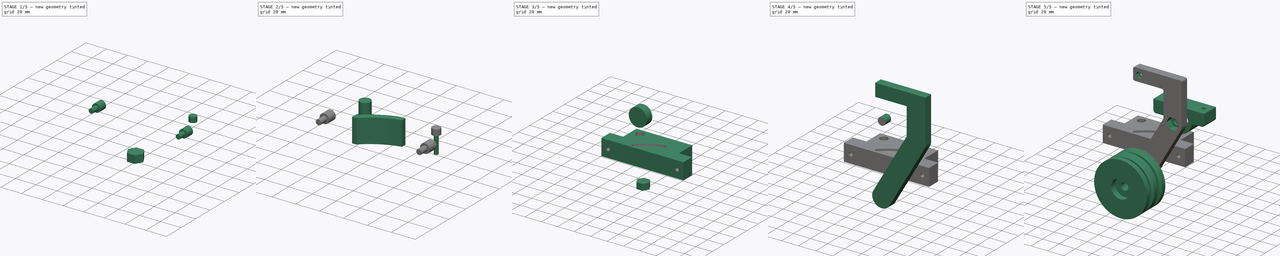
[diagram: build sequence overview — one tinted view per stage of 5, left to right]
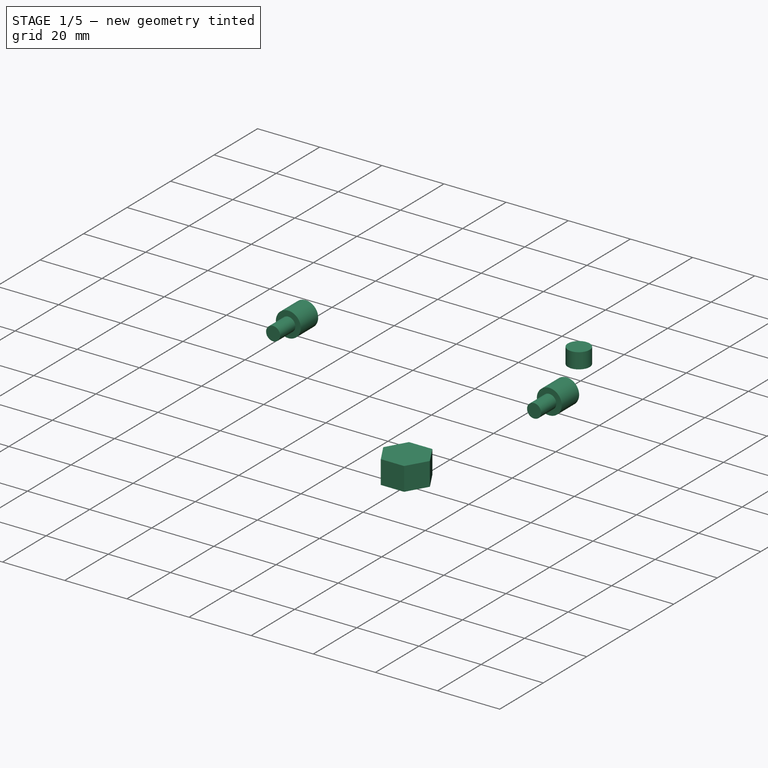
[diagram: stage 1 of 5 — iso view after this stage's code; geometry added in this stage tinted green]
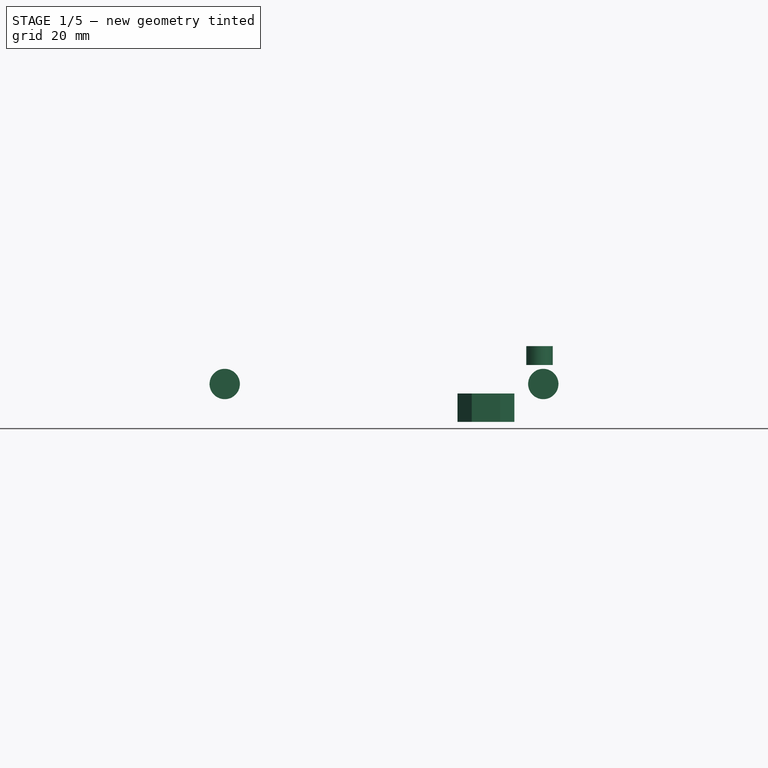
[diagram: stage 1 of 5 — front view after this stage's code; geometry added in this stage tinted green]
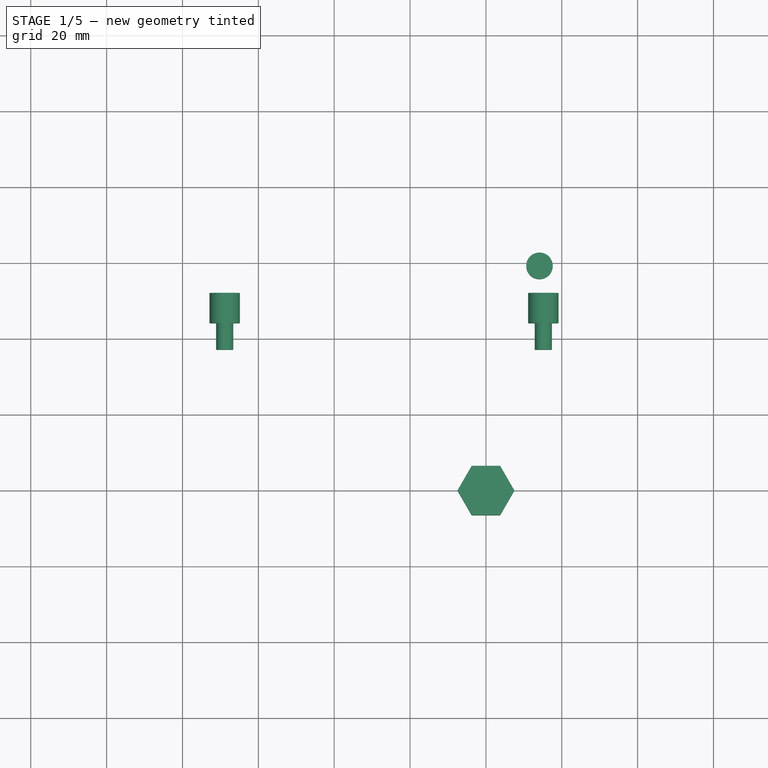
[diagram: stage 1 of 5 — top view after this stage's code; geometry added in this stage tinted green]
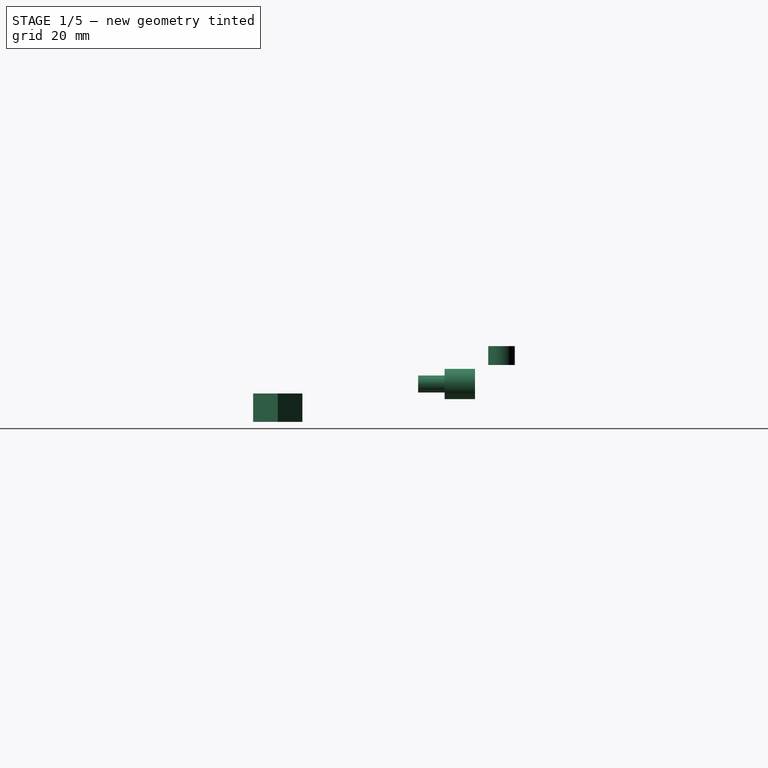
[diagram: stage 1 of 5 — right view after this stage's code; geometry added in this stage tinted green]
FCSTD DOCUMENT  (FreeCAD 1.0R1.0rc2)
Label: SuspensioNPart2_NoParametric
License: All rights reserved
LicenseURL: http://en.wikipedia.org/wiki/All_rights_reserved
objects: Part::Cylinder×14, Part::MultiFuse×8, Part::Box×6, Sketcher::SketchObject×4, PartDesign::Pad×4, PartDesign::Body×4, Spreadsheet::Sheet×4, Part::Cut×3, Part::Fillet×3, Part::Feature×2, Part::Compound×1, Part::MultiCommon×1
note: 62 computed .brp shape members not serialized (recipe doc carries the construction recipe); baked Part::Feature solids carry a one-line shape summary decoded from their .brp

FEATURE [Sketcher::SketchObject] Sketch004
  ArcFitTolerance = 1e-06
  AttachmentSupport = -> [XY_Plane004]
  FullyConstrained = true
  MakeInternals = false
  MapMode = 5
  expr: Constraints[17] = 15 / 2
  sketch-geometry (7):
    g0: LineSegment StartX=7.5 StartY=0 StartZ=0 EndX=3.75 EndY=6.49519 EndZ=0
    g1: LineSegment StartX=3.75 StartY=6.49519 StartZ=0 EndX=-3.75 EndY=6.49519 EndZ=0
    g2: LineSegment StartX=-3.75 StartY=6.49519 StartZ=0 EndX=-7.5 EndY=0 EndZ=0
    g3: LineSegment StartX=-7.5 StartY=0 StartZ=0 EndX=-3.75 EndY=-6.49519 EndZ=0
    g4: LineSegment StartX=-3.75 StartY=-6.49519 StartZ=0 EndX=3.75 EndY=-6.49519 EndZ=0
    g5: LineSegment StartX=3.75 StartY=-6.49519 StartZ=0 EndX=7.5 EndY=0 EndZ=0
    g6: Circle [constr] CenterX=0 CenterY=0 CenterZ=0 NormalX=0 NormalY=0 NormalZ=1 AngleXU=0 Radius=7.5
  constraints (16):
    c: Coincident(g0,g1)
    c: Coincident(g1,g2)
    c: Coincident(g2,g3)
    c: Coincident(g3,g4)
    c: Coincident(g4,g5)
    c: Coincident(g5,g0)
    c: Equal(g0, g1-g5) x5
    c: PointOnObject(g0,g6)
    c: PointOnObject(g1,g6)
    c: PointOnObject(g2,g6)
    c: PointOnObject(g3,g6)
    c: PointOnObject(g4,g6)
    c: PointOnObject(g5,g6)
    c: Radius(g6) = 7.5
    c: Coincident(g6,g-1)
    c: PointOnObject(g5,g-1)
FEATURE [PartDesign::Pad] Pad004
  Direction = (0,0,1)
  Length = 7.5
  Length2 = 10
  Profile = -> Sketch004
  ReferenceAxis = -> Sketch004 [N_Axis]
  Suppressed = false
  Type = 0
FEATURE [PartDesign::Body] Body004  label="M8Press002"
  AllowCompound = false
  Group = -> [Sketch004,Pad004]
  Origin = -> Origin004
  Placement = pos=(-50.8651,67,0) rot=(1,0,0;0rad)
  Tip = -> Pad004
  expr: .Placement.Base.x = -sqrt(<<SuspensionLimiter>>.rotation_radius * <<SuspensionLimiter>>.rotation_radius - <<SuspensionLimiter>>.rotation_offset * <<SuspensionLimiter>>.rotation_offset) - 10
  expr: .Placement.Base.y = <<SuspensionLimiter>>.rotation_offset + <<SuspensionLimiter>>.rotation_height_limit + 10
FEATURE [Spreadsheet::Sheet] Spreadsheet003  label="BearingFlangeParameters001"
  cells = A2='Bearing configuration; A3='Bearing OD; B3(bearing_od)=22; A4='Bearing thickness; B4(bearing_h)=7; A5='Tolerance; B5(tolerance)=0.2; A6='Bearing ID; B6(bearing_id)=15; A7='Base Profile configuration; A8='Width; B8(profile_width)=20; A9='Screw through dia; B9(screw_hole_dia)=4.5; A10='Bearing offset; B10(bearing_offset)=15; C10='This is the offset of the axis center from the profile base; A11='Min wall width; B11(min_wall_width)=4; C11='Wall width except for bearing offset towards profile; A12='Screw head dia; B12(screw_head_dia)=8; C12='M4 has 7mm diameter, leaving space; A13='Screw head height; B13(screw_head_height)=8; C13='M4 has 4mm, leaving space (and with +3mm can use 12mm screws)
FEATURE [Part::Cylinder] Cylinder020
  Angle = 360
  AttacherType = Attacher::AttachEngine3D
  FirstAngle = 0
  Height = 5
  Placement = pos=(14.1258,59,15) rot=(0,0,1;0rad)
  Radius = 3.5
  SecondAngle = 0
  expr: .Placement.Base.x = -(sqrt(<<SuspensionLimiter>>.rotation_radius * <<SuspensionLimiter>>.rotation_radius - <<SuspensionLimiter>>.rotation_offset * <<SuspensionLimiter>>.rotation_offset) - sqrt(57 * 57 - <<SuspensionLimiter>>.rotation_height_limit * <<SuspensionLimiter>>.rotation_height_limit))
  expr: .Placement.Base.y = <<SuspensionLimiter>>.rotation_offset - <<SuspensionLimiter>>.limiter_diameter / 2 + <<SuspensionLimiter>>.rotation_height_limit + <<SuspensionLimiter>>.limiter_diameter
  expr: .Placement.Base.z = <<SuspensionLimiter>>.profile_width - 5
FEATURE [Part::Cylinder] Cylinder021
  Angle = 360
  AttacherType = Attacher::AttachEngine3D
  FirstAngle = 0
  Height = 8
  Radius = 4
  SecondAngle = 0
FEATURE [Part::Cylinder] Cylinder022
  Angle = 360
  AttacherType = Attacher::AttachEngine3D
  FirstAngle = 0
  Height = 15
  Radius = 2.25
  SecondAngle = 0
FEATURE [Part::MultiFuse] Fusion008
  Placement = pos=(-68.8651,52,10) rot=(1,0,0;1.5708rad)
  Shapes = -> [Cylinder022,Cylinder021]
  expr: .Placement.Base.x = -sqrt(<<SuspensionLimiter>>.rotation_radius * <<SuspensionLimiter>>.rotation_radius - <<SuspensionLimiter>>.rotation_offset * <<SuspensionLimiter>>.rotation_offset) - 10 - 10 - 16 + 8
  expr: .Placement.Base.y = <<SuspensionLimiter>>.rotation_offset - 5 + 15
  expr: .Placement.Base.z = <<SuspensionLimiter>>.profile_width / 2
FEATURE [Part::Cylinder] Cylinder023
  Angle = 360
  AttacherType = Attacher::AttachEngine3D
  FirstAngle = 0
  Height = 8
  Radius = 4
  SecondAngle = 0
FEATURE [Part::Cylinder] Cylinder024
  Angle = 360
  AttacherType = Attacher::AttachEngine3D
  FirstAngle = 0
  Height = 15
  Radius = 2.25
  SecondAngle = 0
FEATURE [Part::MultiFuse] Fusion009
  Placement = pos=(15.1258,52,10) rot=(1,0,0;1.5708rad)
  Shapes = -> [Cylinder024,Cylinder023]
  expr: .Placement.Base.x = -sqrt(<<SuspensionLimiter>>.rotation_radius * <<SuspensionLimiter>>.rotation_radius - <<SuspensionLimiter>>.rotation_offset * <<SuspensionLimiter>>.rotation_offset) - 10 - 10 - 16 + 8 + sqrt(<<SuspensionLimiter>>.rotation_radius * <<SuspensionLimiter>>.rotation_radius - <<SuspensionLimiter>>.rotation_offset * <<SuspensionLimiter>>.rotation_offset) + 10 + max(-(sqrt(<<SuspensionLimiter>>.rotation_radius * <<SuspensionLimiter>>.rotation_radius - <<SuspensionLimiter>>.rotation_offset * <<SuspensionLimiter>>.rotation_offset) - sqrt(57 * 57 - <<SuspensionLimiter>>.rotation_height_limit * <<SuspensionLimiter>>.rotation_height_limit)); 0) + 5 + 10 + 32 - 16 - 20 + 8
  expr: .Placement.Base.y = <<SuspensionLimiter>>.rotation_offset - 5 + 15
  expr: .Placement.Base.z = <<SuspensionLimiter>>.profile_width / 2
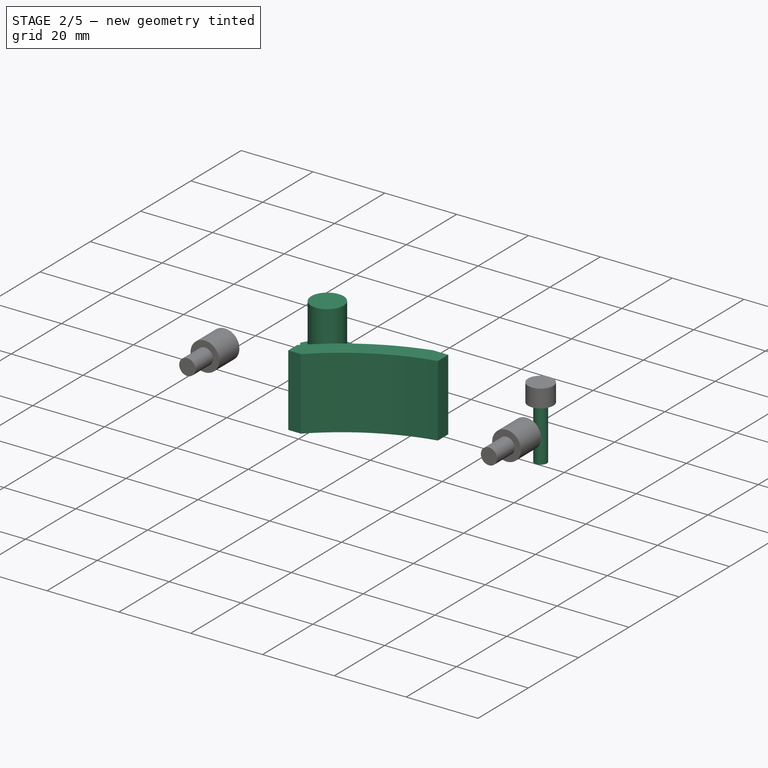
[diagram: stage 2 of 5 — iso view after this stage's code; geometry added in this stage tinted green]
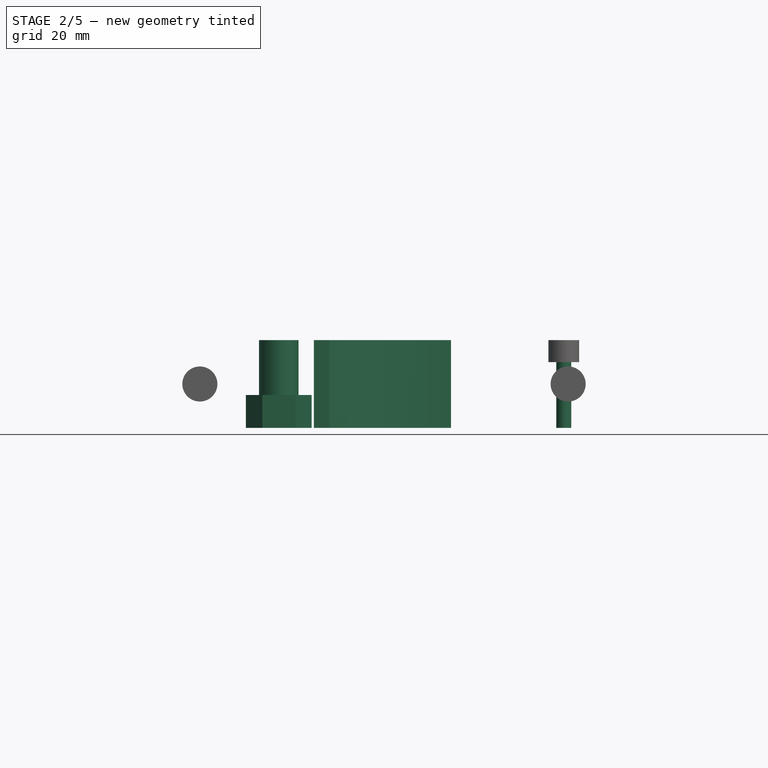
[diagram: stage 2 of 5 — front view after this stage's code; geometry added in this stage tinted green]
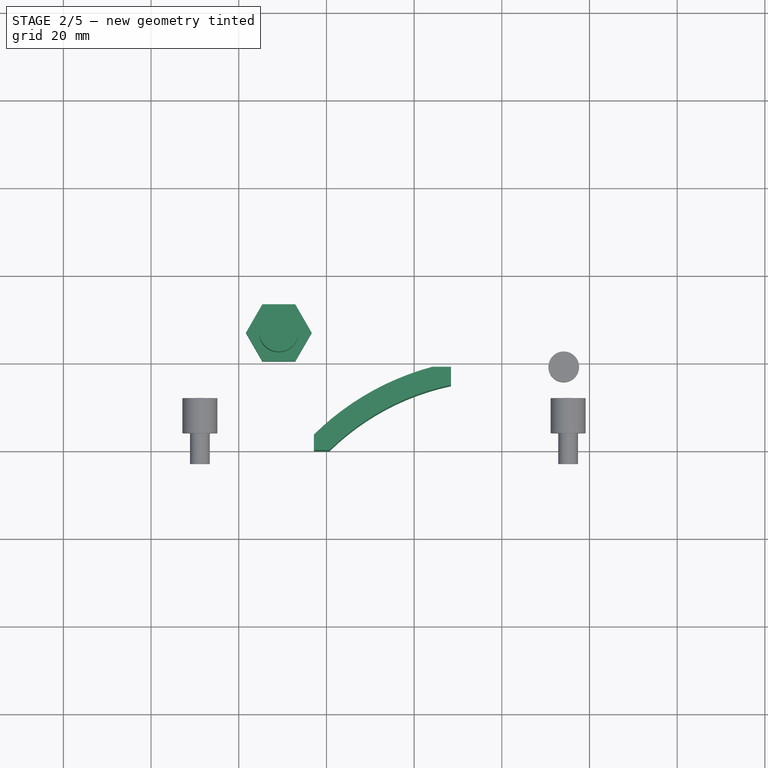
[diagram: stage 2 of 5 — top view after this stage's code; geometry added in this stage tinted green]
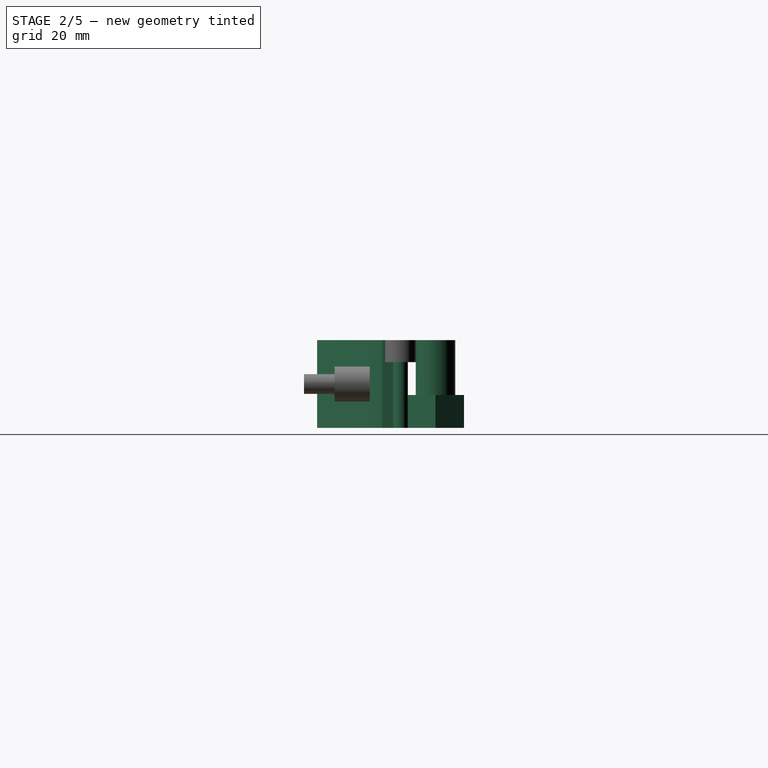
[diagram: stage 2 of 5 — right view after this stage's code; geometry added in this stage tinted green]
FEATURE [Part::Cylinder] Cylinder
  Angle = 360
  AttacherType = Attacher::AttachEngine3D
  FirstAngle = 0
  Height = 20
  Radius = 56.1
  SecondAngle = 0
  expr: Height = <<SuspensionLimiter>>.profile_width
  expr: Radius = <<SuspensionLimiter>>.rotation_radius - <<SuspensionLimiter>>.limiter_diameter / 2 - 0.5
FEATURE [Part::Cylinder] Cylinder017
  Angle = 360
  AttacherType = Attacher::AttachEngine3D
  FirstAngle = 0
  Height = 20
  Radius = 61.1
  SecondAngle = 0
  expr: Height = <<SuspensionLimiter>>.profile_width
  expr: Radius = <<SuspensionLimiter>>.rotation_radius + <<SuspensionLimiter>>.limiter_diameter / 2 + 0.5
FEATURE [Part::Cut] Cut
  Base = -> Cylinder017
  Tool = -> Cylinder
FEATURE [Part::Box] Box003  label="Cube003"
  AttacherType = Attacher::AttachEngine3D
  Height = 20
  Length = 31.2651
  Placement = pos=(-42.8651,40,0) rot=(0,0,1;0rad)
  Width = 19
  expr: .Placement.Base.x = -sqrt(<<SuspensionLimiter>>.rotation_radius * <<SuspensionLimiter>>.rotation_radius - <<SuspensionLimiter>>.rotation_offset * <<SuspensionLimiter>>.rotation_offset) - <<SuspensionLimiter>>.limiter_diameter / 2
  expr: .Placement.Base.y = <<SuspensionLimiter>>.rotation_offset - <<SuspensionLimiter>>.limiter_diameter / 2
  expr: Height = <<SuspensionLimiter>>.profile_width
  expr: Length = sqrt(<<SuspensionLimiter>>.rotation_radius * <<SuspensionLimiter>>.rotation_radius - <<SuspensionLimiter>>.rotation_offset * <<SuspensionLimiter>>.rotation_offset) - sqrt(<<SuspensionLimiter>>.rotation_radius * <<SuspensionLimiter>>.rotation_radius - (<<SuspensionLimiter>>.rotation_offset + <<SuspensionLimiter>>.rotation_height_limit) * (<<SuspensionLimiter>>.rotation_offset + <<SuspensionLimiter>>.rotation_height_limit)) + 4
  expr: Width = <<SuspensionLimiter>>.rotation_height_limit + <<SuspensionLimiter>>.limiter_diameter
FEATURE [Spreadsheet::Sheet] Spreadsheet  label="SuspensionLimiter"
  cells = A2='Rotating Radius; B2(rotation_radius)=58.6; A3='Rotation height; B3(rotation_height_limit)=15; A4='Rotation offset; B4(rotation_offset)=42; C4='Vertical; A5='Limiter Diameter; B5(limiter_diameter)=4; A6='Profile width; B6(profile_width)=20
FEATURE [Part::MultiCommon] Common
  Shapes = -> [Cut,Box003]
FEATURE [Part::Cylinder] Cylinder018
  Angle = 360
  AttacherType = Attacher::AttachEngine3D
  FirstAngle = 0
  Height = 20
  Placement = pos=(-50.8651,67,0) rot=(0,0,1;0rad)
  Radius = 4.5
  SecondAngle = 0
  expr: .Placement.Base.x = -sqrt(<<SuspensionLimiter>>.rotation_radius * <<SuspensionLimiter>>.rotation_radius - <<SuspensionLimiter>>.rotation_offset * <<SuspensionLimiter>>.rotation_offset) - 10
  expr: .Placement.Base.y = <<SuspensionLimiter>>.rotation_offset + <<SuspensionLimiter>>.rotation_height_limit + 10
  expr: Height = <<SuspensionLimiter>>.profile_width
FEATURE [Part::Cylinder] Cylinder019
  Angle = 360
  AttacherType = Attacher::AttachEngine3D
  FirstAngle = 0
  Height = 20
  Placement = pos=(14.1258,59,0) rot=(0,0,1;0rad)
  Radius = 1.7
  SecondAngle = 0
  expr: .Placement.Base.x = -(sqrt(<<SuspensionLimiter>>.rotation_radius * <<SuspensionLimiter>>.rotation_radius - <<SuspensionLimiter>>.rotation_offset * <<SuspensionLimiter>>.rotation_offset) - sqrt(57 * 57 - <<SuspensionLimiter>>.rotation_height_limit * <<SuspensionLimiter>>.rotation_height_limit))
  expr: .Placement.Base.y = <<SuspensionLimiter>>.rotation_offset - <<SuspensionLimiter>>.limiter_diameter / 2 + <<SuspensionLimiter>>.rotation_height_limit + <<SuspensionLimiter>>.limiter_diameter
  expr: Height = <<SuspensionLimiter>>.profile_width
FEATURE [Part::MultiFuse] Fusion011
  Shapes = -> [Cylinder018,Cylinder019,Body004,Common,Cylinder020,Fusion008,Fusion009]
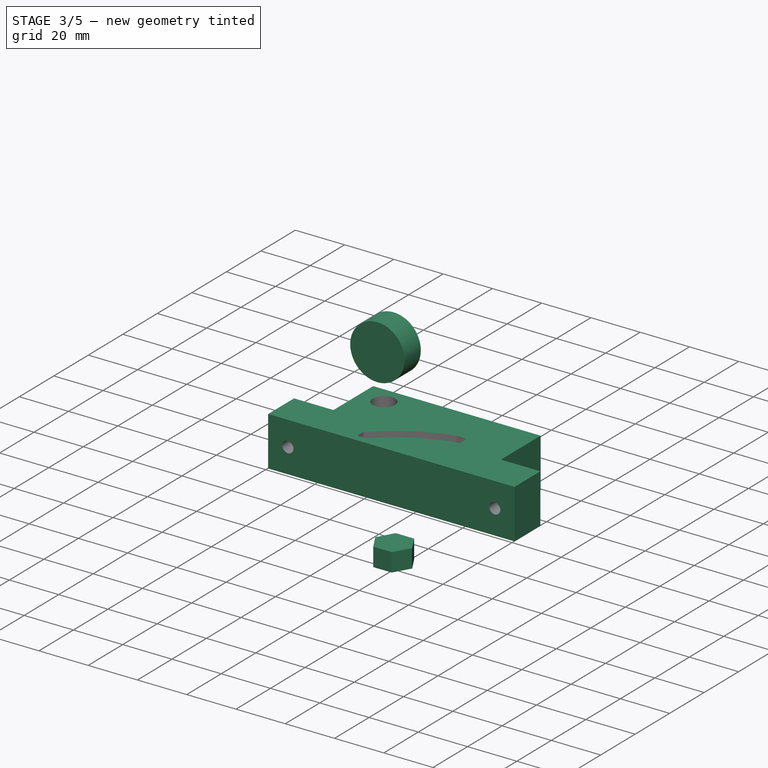
[diagram: stage 3 of 5 — iso view after this stage's code; geometry added in this stage tinted green]
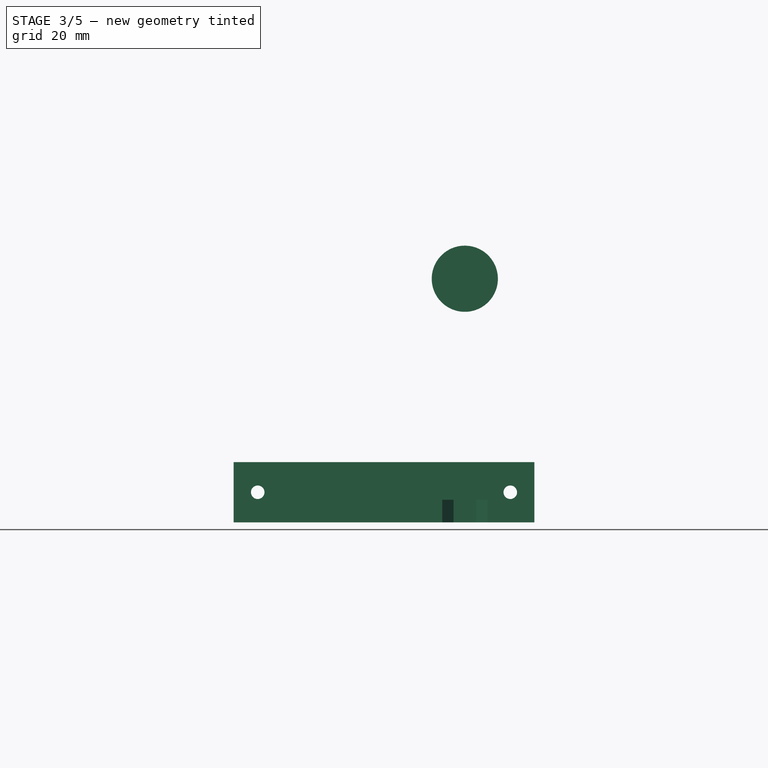
[diagram: stage 3 of 5 — front view after this stage's code; geometry added in this stage tinted green]
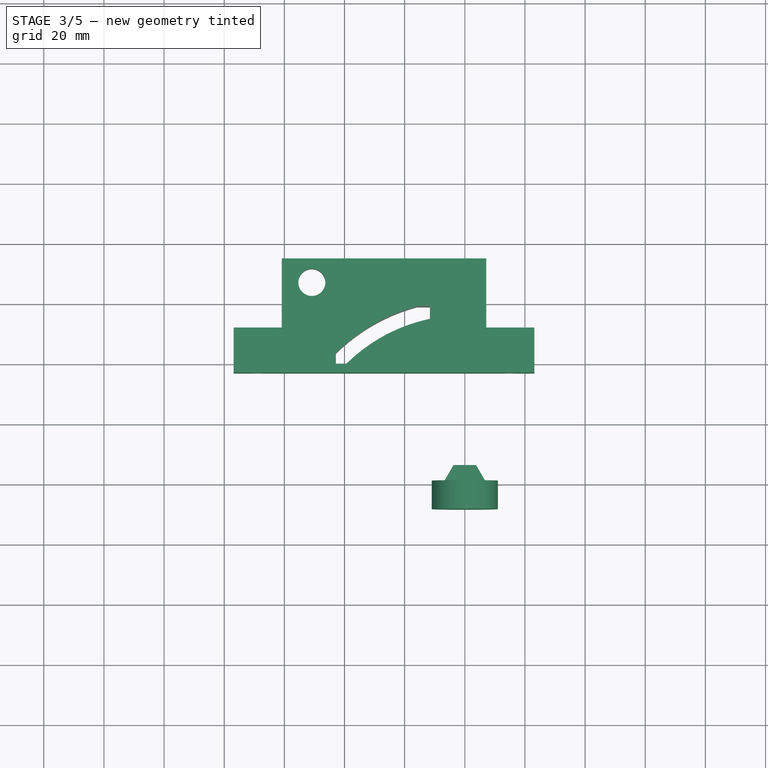
[diagram: stage 3 of 5 — top view after this stage's code; geometry added in this stage tinted green]
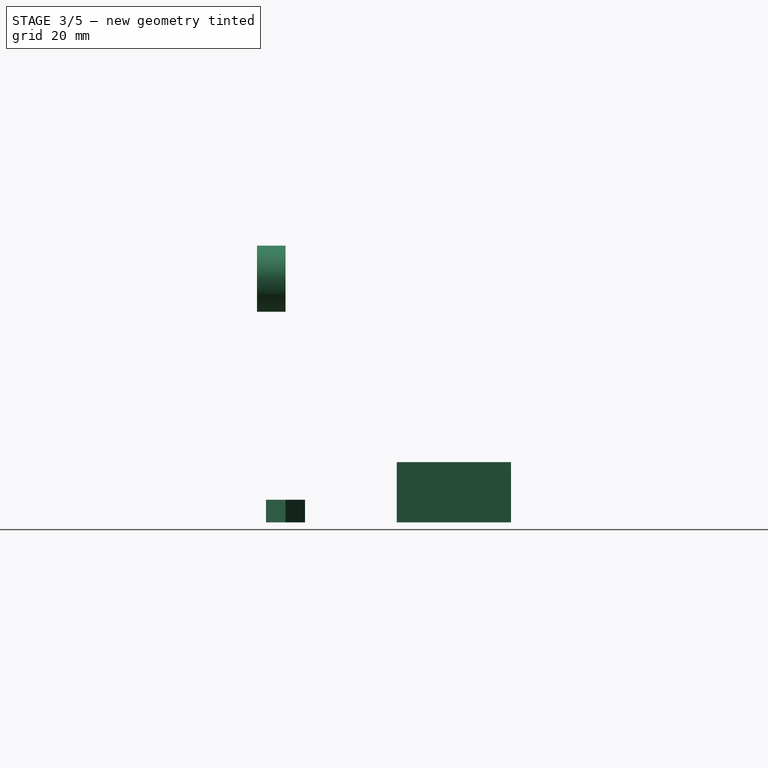
[diagram: stage 3 of 5 — right view after this stage's code; geometry added in this stage tinted green]
FEATURE [Part::Cylinder] Cylinder013
  Angle = 360
  AttacherType = Attacher::AttachEngine3D
  FirstAngle = 0
  Height = 9.5
  Placement = pos=(0,0,81) rot=(1,0,0;1.5708rad)
  Radius = 11
  SecondAngle = 0
  expr: .Placement.Base.z = <<SuspensionBracket1>>.vertical_spacing + 11
  expr: Height = <<SuspensionBracket1>>.thick_eff
FEATURE [Sketcher::SketchObject] Sketch
  ArcFitTolerance = 1e-06
  AttachmentSupport = -> [XY_Plane]
  FullyConstrained = true
  MakeInternals = false
  MapMode = 5
  expr: Constraints[17] = 15 / 2
  sketch-geometry (7):
    g0: LineSegment StartX=7.5 StartY=0 StartZ=0 EndX=3.75 EndY=6.49519 EndZ=0
    g1: LineSegment StartX=3.75 StartY=6.49519 StartZ=0 EndX=-3.75 EndY=6.49519 EndZ=0
    g2: LineSegment StartX=-3.75 StartY=6.49519 StartZ=0 EndX=-7.5 EndY=0 EndZ=0
    g3: LineSegment StartX=-7.5 StartY=0 StartZ=0 EndX=-3.75 EndY=-6.49519 EndZ=0
    g4: LineSegment StartX=-3.75 StartY=-6.49519 StartZ=0 EndX=3.75 EndY=-6.49519 EndZ=0
    g5: LineSegment StartX=3.75 StartY=-6.49519 StartZ=0 EndX=7.5 EndY=0 EndZ=0
    g6: Circle [constr] CenterX=0 CenterY=0 CenterZ=0 NormalX=0 NormalY=0 NormalZ=1 AngleXU=0 Radius=7.5
  constraints (16):
    c: Coincident(g0,g1)
    c: Coincident(g1,g2)
    c: Coincident(g2,g3)
    c: Coincident(g3,g4)
    c: Coincident(g4,g5)
    c: Coincident(g5,g0)
    c: Equal(g0, g1-g5) x5
    c: PointOnObject(g0,g6)
    c: PointOnObject(g1,g6)
    c: PointOnObject(g2,g6)
    c: PointOnObject(g3,g6)
    c: PointOnObject(g4,g6)
    c: PointOnObject(g5,g6)
    c: Radius(g6) = 7.5
    c: Coincident(g6,g-1)
    c: PointOnObject(g5,g-1)
FEATURE [PartDesign::Pad] Pad
  Direction = (0,0,1)
  Length = 7.5
  Length2 = 10
  Profile = -> Sketch
  ReferenceAxis = -> Sketch [N_Axis]
  Suppressed = false
  Type = 0
FEATURE [PartDesign::Body] Body  label="M8Press"
  AllowCompound = false
  Group = -> [Sketch,Pad]
  Origin = -> Origin
  Placement = pos=(0,0,0) rot=(1,0,0;1.5708rad)
  Tip = -> Pad
FEATURE [Sketcher::SketchObject] Sketch001
  ArcFitTolerance = 1e-06
  AttachmentSupport = -> [XY_Plane001]
  FullyConstrained = true
  MakeInternals = false
  MapMode = 5
  expr: Constraints[17] = 8 / 2
  sketch-geometry (7):
    g0: LineSegment StartX=4 StartY=0 StartZ=0 EndX=2 EndY=3.4641 EndZ=0
    g1: LineSegment StartX=2 StartY=3.4641 StartZ=0 EndX=-2 EndY=3.4641 EndZ=0
    g2: LineSegment StartX=-2 StartY=3.4641 StartZ=0 EndX=-4 EndY=0 EndZ=0
    g3: LineSegment StartX=-4 StartY=0 StartZ=0 EndX=-2 EndY=-3.4641 EndZ=0
    g4: LineSegment StartX=-2 StartY=-3.4641 StartZ=0 EndX=2 EndY=-3.4641 EndZ=0
    g5: LineSegment StartX=2 StartY=-3.4641 StartZ=0 EndX=4 EndY=0 EndZ=0
    g6: Circle [constr] CenterX=0 CenterY=0 CenterZ=0 NormalX=0 NormalY=0 NormalZ=1 AngleXU=0 Radius=4
  constraints (16):
    c: Coincident(g0,g1)
    c: Coincident(g1,g2)
    c: Coincident(g2,g3)
    c: Coincident(g3,g4)
    c: Coincident(g4,g5)
    c: Coincident(g5,g0)
    c: Equal(g0, g1-g5) x5
    c: PointOnObject(g0,g6)
    c: PointOnObject(g1,g6)
    c: PointOnObject(g2,g6)
    c: PointOnObject(g3,g6)
    c: PointOnObject(g4,g6)
    c: PointOnObject(g5,g6)
    c: Radius(g6) = 4
    c: Coincident(g6,g-1)
    c: PointOnObject(g5,g-1)
FEATURE [PartDesign::Pad] Pad001
  Direction = (0,0,1)
  Length = 4
  Length2 = 10
  Profile = -> Sketch001
  ReferenceAxis = -> Sketch001 [N_Axis]
  Suppressed = false
  Type = 0
FEATURE [PartDesign::Body] Body001  label="M4Press"
  AllowCompound = false
  Group = -> [Sketch001,Pad001]
  Origin = -> Origin001
  Placement = pos=(0,-5.5,112.5) rot=(1,0,0;1.5708rad)
  Tip = -> Pad001
  expr: .Placement.Base.y = -(<<SuspensionBracket1>>.thick_eff - 4)
  expr: .Placement.Base.z = <<SuspensionBracket1>>.vertical_spacing + <<BearingFlangeParameters>>.bearing_offset + <<BearingFlangeParameters>>.profile_width + 7.5
FEATURE [Sketcher::SketchObject] Sketch002
  ArcFitTolerance = 1e-06
  AttachmentSupport = -> [XY_Plane002]
  FullyConstrained = true
  MakeInternals = false
  MapMode = 5
  expr: Constraints[17] = 15 / 2
  sketch-geometry (7):
    g0: LineSegment StartX=7.5 StartY=0 StartZ=0 EndX=3.75 EndY=6.49519 EndZ=0
    g1: LineSegment StartX=3.75 StartY=6.49519 StartZ=0 EndX=-3.75 EndY=6.49519 EndZ=0
    g2: LineSegment StartX=-3.75 StartY=6.49519 StartZ=0 EndX=-7.5 EndY=0 EndZ=0
    g3: LineSegment StartX=-7.5 StartY=0 StartZ=0 EndX=-3.75 EndY=-6.49519 EndZ=0
    g4: LineSegment StartX=-3.75 StartY=-6.49519 StartZ=0 EndX=3.75 EndY=-6.49519 EndZ=0
    g5: LineSegment StartX=3.75 StartY=-6.49519 StartZ=0 EndX=7.5 EndY=0 EndZ=0
    g6: Circle [constr] CenterX=0 CenterY=0 CenterZ=0 NormalX=0 NormalY=0 NormalZ=1 AngleXU=0 Radius=7.5
  constraints (16):
    c: Coincident(g0,g1)
    c: Coincident(g1,g2)
    c: Coincident(g2,g3)
    c: Coincident(g3,g4)
    c: Coincident(g4,g5)
    c: Coincident(g5,g0)
    c: Equal(g0, g1-g5) x5
    c: PointOnObject(g0,g6)
    c: PointOnObject(g1,g6)
    c: PointOnObject(g2,g6)
    c: PointOnObject(g3,g6)
    c: PointOnObject(g4,g6)
    c: PointOnObject(g5,g6)
    c: Radius(g6) = 7.5
    c: Coincident(g6,g-1)
    c: PointOnObject(g5,g-1)
FEATURE [PartDesign::Pad] Pad002
  Direction = (0,0,1)
  Length = 7.5
  Length2 = 10
  Profile = -> Sketch002
  ReferenceAxis = -> Sketch002 [N_Axis]
  Suppressed = false
  Type = 0
FEATURE [Part::Box] Box004  label="Cube004"
  AttacherType = Attacher::AttachEngine3D
  Height = 20
  Length = 67.9909
  Placement = pos=(-60.8651,37,0) rot=(0,0,1;0rad)
  Width = 38
  expr: .Placement.Base.x = -sqrt(<<SuspensionLimiter>>.rotation_radius * <<SuspensionLimiter>>.rotation_radius - <<SuspensionLimiter>>.rotation_offset * <<SuspensionLimiter>>.rotation_offset) - 10 - 10
  expr: .Placement.Base.y = <<SuspensionLimiter>>.rotation_offset - 5
  expr: Height = <<SuspensionLimiter>>.profile_width
  expr: Length = sqrt(<<SuspensionLimiter>>.rotation_radius * <<SuspensionLimiter>>.rotation_radius - <<SuspensionLimiter>>.rotation_offset * <<SuspensionLimiter>>.rotation_offset) + 10 + max(-(sqrt(<<SuspensionLimiter>>.rotation_radius * <<SuspensionLimiter>>.rotation_radius - <<SuspensionLimiter>>.rotation_offset * <<SuspensionLimiter>>.rotation_offset) - sqrt(57 * 57 - <<SuspensionLimiter>>.rotation_height_limit * <<SuspensionLimiter>>.rotation_height_limit)); 0) + 5 + 10 - 20 + 8
  expr: Width = 5 + <<SuspensionLimiter>>.rotation_height_limit + 10 + 8
FEATURE [Part::Box] Box005  label="Cube005"
  AttacherType = Attacher::AttachEngine3D
  Height = 20
  Length = 99.9909
  Placement = pos=(-76.8651,37,0) rot=(0,0,1;0rad)
  Width = 15
  expr: .Placement.Base.x = -sqrt(<<SuspensionLimiter>>.rotation_radius * <<SuspensionLimiter>>.rotation_radius - <<SuspensionLimiter>>.rotation_offset * <<SuspensionLimiter>>.rotation_offset) - 10 - 10 - 16
  expr: .Placement.Base.y = <<SuspensionLimiter>>.rotation_offset - 5
  expr: Height = <<SuspensionLimiter>>.profile_width
  expr: Length = sqrt(<<SuspensionLimiter>>.rotation_radius * <<SuspensionLimiter>>.rotation_radius - <<SuspensionLimiter>>.rotation_offset * <<SuspensionLimiter>>.rotation_offset) + 10 + max(-(sqrt(<<SuspensionLimiter>>.rotation_radius * <<SuspensionLimiter>>.rotation_radius - <<SuspensionLimiter>>.rotation_offset * <<SuspensionLimiter>>.rotation_offset) - sqrt(57 * 57 - <<SuspensionLimiter>>.rotation_height_limit * <<SuspensionLimiter>>.rotation_height_limit)); 0) + 5 + 10 + 32 - 20 + 8
  expr: Width = 15
FEATURE [Part::MultiFuse] Fusion010
  Shapes = -> [Box004,Box005]
FEATURE [Part::Cut] Cut006
  Base = -> Fusion010
  Tool = -> Fusion011
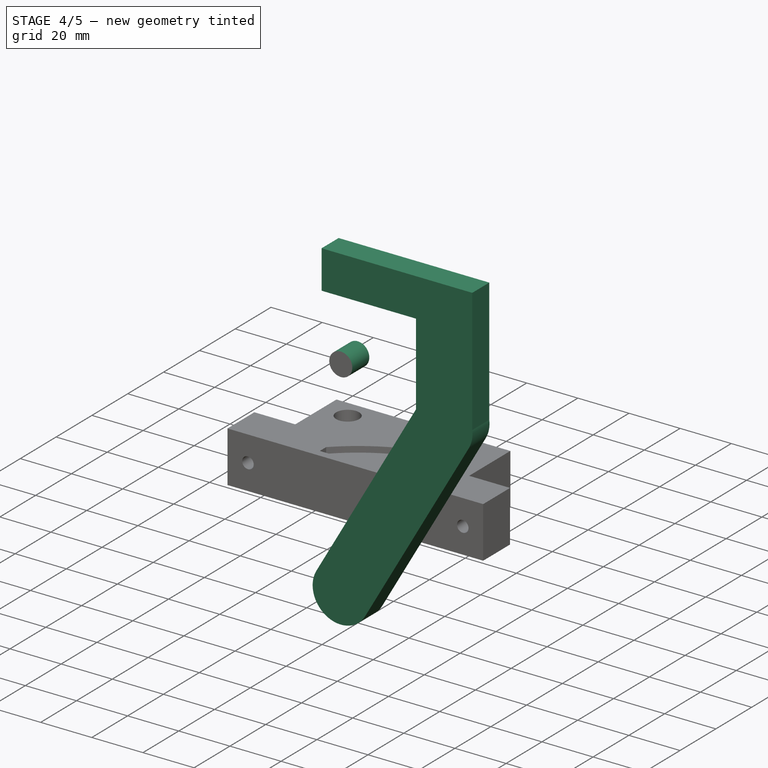
[diagram: stage 4 of 5 — iso view after this stage's code; geometry added in this stage tinted green]
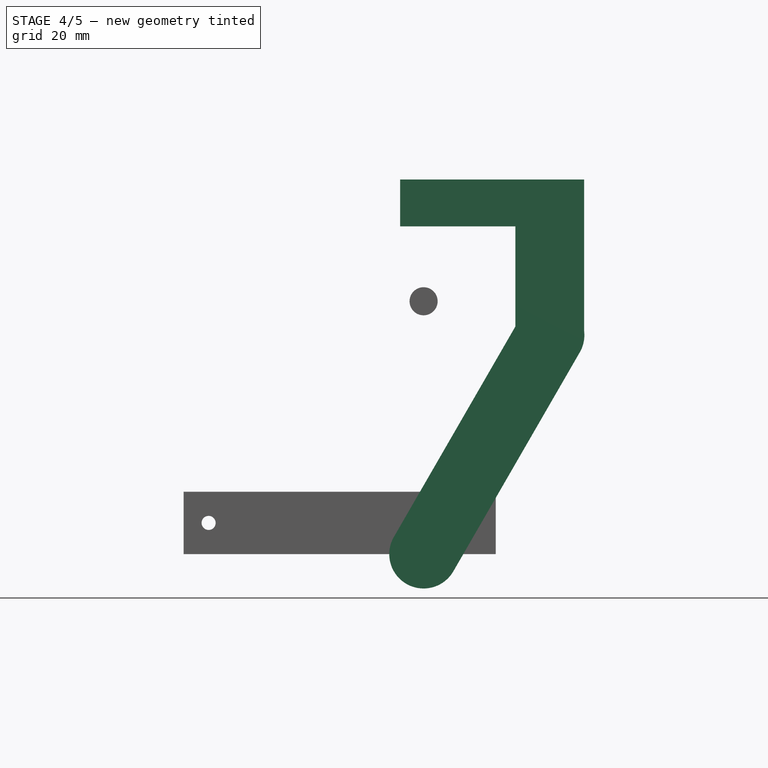
[diagram: stage 4 of 5 — front view after this stage's code; geometry added in this stage tinted green]
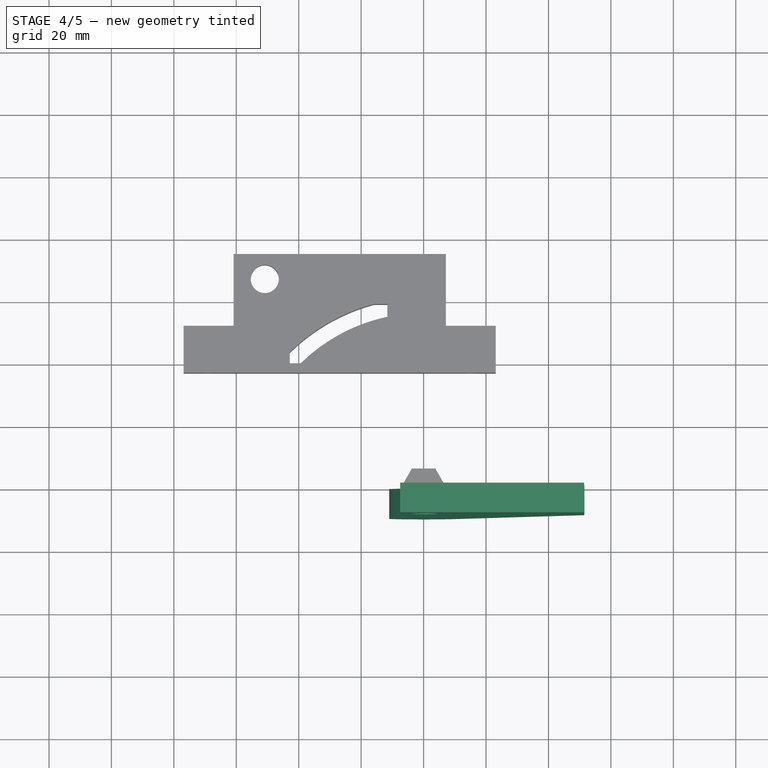
[diagram: stage 4 of 5 — top view after this stage's code; geometry added in this stage tinted green]
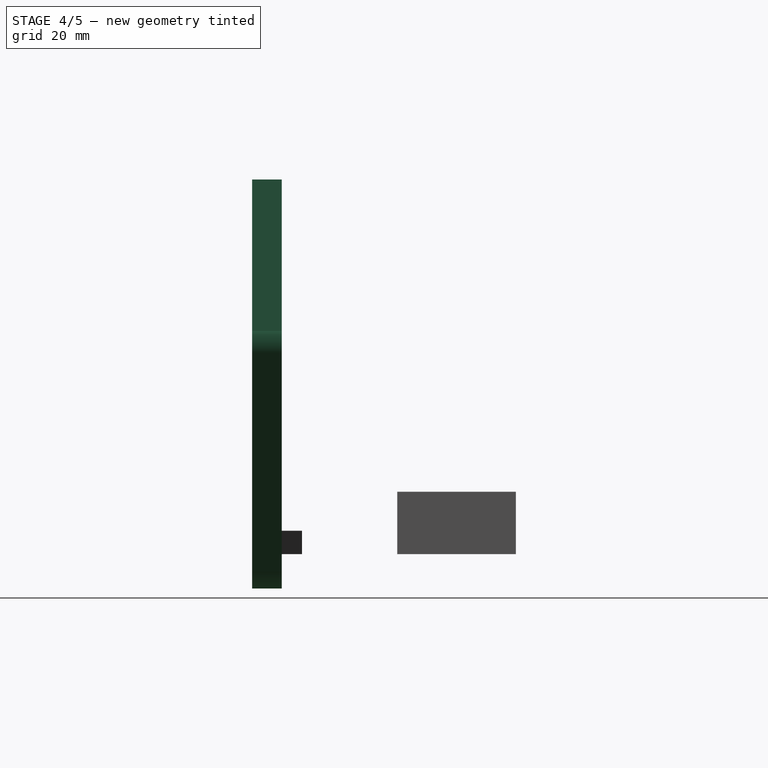
[diagram: stage 4 of 5 — right view after this stage's code; geometry added in this stage tinted green]
FEATURE [Part::Box] Box  label="Cube"
  AttacherType = Attacher::AttachEngine3D
  Height = 80.829
  Length = 22
  Placement = pos=(-11,-9.5,0) rot=(0,0,1;0rad)
  Width = 9.5
  expr: .Placement.Base.y = -<<SuspensionBracket1>>.thick_eff
  expr: Height = <<SuspensionBracket1>>.straight1
  expr: Width = <<SuspensionBracket1>>.thick_eff
FEATURE [Part::Box] Box001  label="Cube001"
  AttacherType = Attacher::AttachEngine3D
  Height = 50
  Length = 22
  Placement = pos=(29.4145,-9.5,70) rot=(0,0,1;0rad)
  Width = 9.5
  expr: .Placement.Base.x = <<SuspensionBracket1>>.horizontalspacing_wf - 11
  expr: .Placement.Base.y = -<<SuspensionBracket1>>.thick_eff
  expr: .Placement.Base.z = <<SuspensionBracket1>>.vertical_spacing
  expr: Height = <<BearingFlangeParameters>>.bearing_offset + <<BearingFlangeParameters>>.profile_width + 15
  expr: Width = <<SuspensionBracket1>>.thick_eff
FEATURE [Part::Box] Box002  label="Cube002"
  AttacherType = Attacher::AttachEngine3D
  Height = 15
  Length = 58.9145
  Placement = pos=(-7.5,-9.5,105) rot=(0,0,1;0rad)
  Width = 9.5
  expr: .Placement.Base.y = -<<SuspensionBracket1>>.thick_eff
  expr: .Placement.Base.z = <<SuspensionBracket1>>.vertical_spacing + <<BearingFlangeParameters>>.bearing_offset + <<BearingFlangeParameters>>.profile_width
  expr: Length = <<SuspensionBracket1>>.horizontalspacing_wf + 11 + 7.5
  expr: Width = <<SuspensionBracket1>>.thick_eff
FEATURE [Part::Cylinder] Cylinder012
  Angle = 360
  AttacherType = Attacher::AttachEngine3D
  FirstAngle = 0
  Height = 9.5
  Placement = pos=(0,0,0) rot=(1,0,0;1.5708rad)
  Radius = 11
  SecondAngle = 0
  expr: Height = <<SuspensionBracket1>>.thick_eff
FEATURE [Part::Cylinder] Cylinder015
  Angle = 360
  AttacherType = Attacher::AttachEngine3D
  FirstAngle = 0
  Height = 9.5
  Placement = pos=(0,0,81) rot=(1,0,0;1.5708rad)
  Radius = 4.5
  SecondAngle = 0
  expr: .Placement.Base.z = <<SuspensionBracket1>>.vertical_spacing + 11
  expr: Height = <<SuspensionBracket1>>.thick_eff
FEATURE [Part::Cylinder] Cylinder016
  Angle = 360
  AttacherType = Attacher::AttachEngine3D
  FirstAngle = 0
  Height = 9.5
  Placement = pos=(0,0,112.5) rot=(1,0,0;1.5708rad)
  Radius = 2.25
  SecondAngle = 0
  expr: .Placement.Base.z = <<SuspensionBracket1>>.vertical_spacing + <<BearingFlangeParameters>>.bearing_offset + <<BearingFlangeParameters>>.profile_width + 7.5
  expr: Height = <<SuspensionBracket1>>.thick_eff
FEATURE [Part::Feature] Fillet_solid  label="Fillet (Solid)"
  Placement = pos=(40.4145,11.5,85) rot=(0,1,0;3.14159rad)
  shape: bbox 62 x 20 x 30 mm, 28 faces (baked)
  expr: .Placement.Base.x = <<SuspensionBracket1>>.horizontalspacing_wf
  expr: .Placement.Base.y = <<SuspensionBracket1>>.thick_eff + 2
FEATURE [Part::Feature] Fusion004_solid  label="Fusion004 (Solid)"
  Placement = pos=(0,-10,0) rot=(1,0,0;1.5708rad)
  shape: bbox 64 x 32 x 64 mm, 26 faces (baked)
FEATURE [Part::MultiFuse] Fusion005
  Placement = pos=(0,0,0) rot=(0,1,0;0.523599rad)
  Shapes = -> [Cylinder012,Box,Cylinder013]
  expr: .Placement.Rotation.Angle = <<SuspensionBracket1>>.idle_angle
FEATURE [Part::MultiFuse] Fusion007
  Shapes = -> [Box001,Box002,Fusion005]
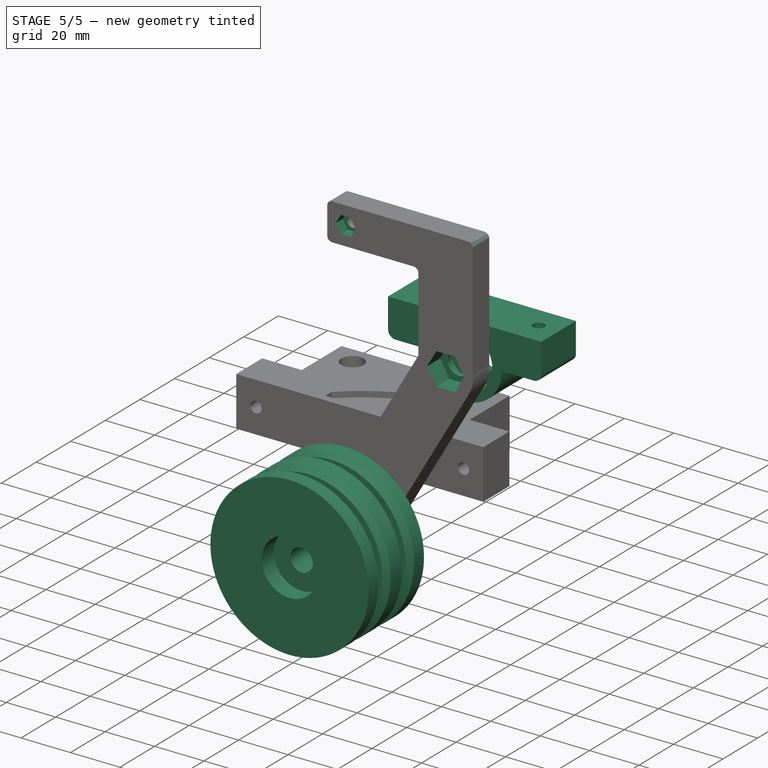
[diagram: stage 5 of 5 — iso view after this stage's code; geometry added in this stage tinted green]
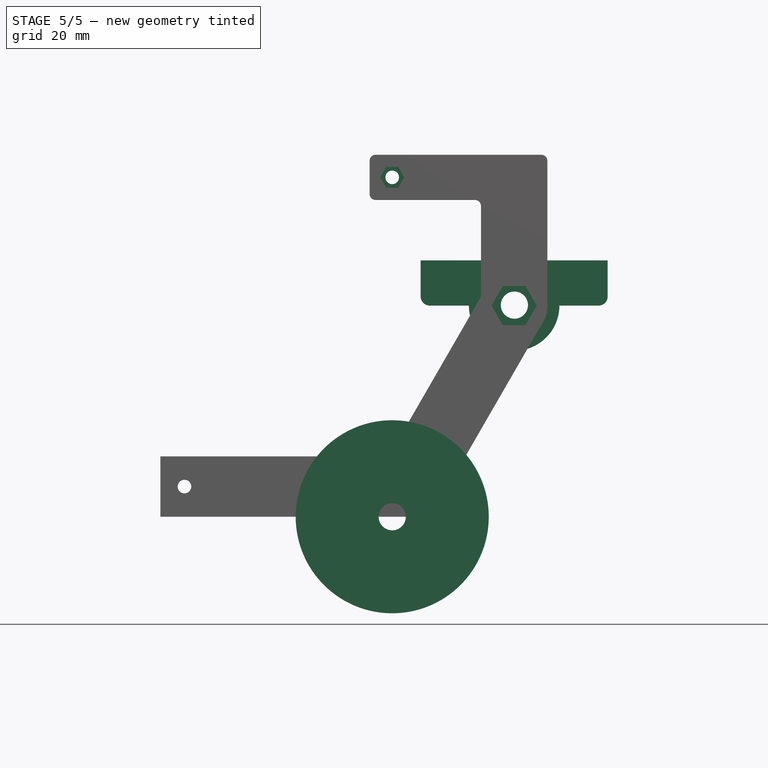
[diagram: stage 5 of 5 — front view after this stage's code; geometry added in this stage tinted green]
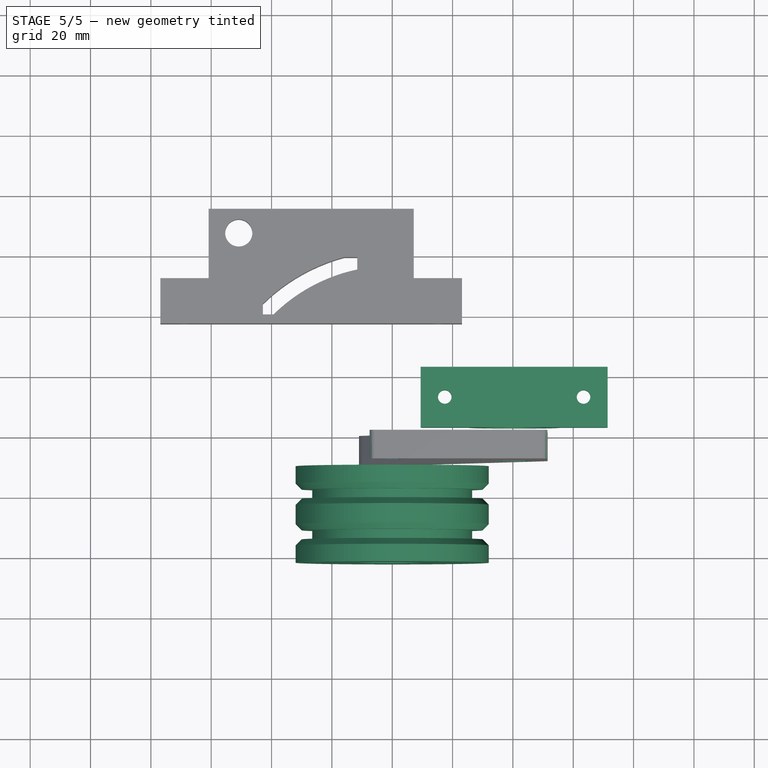
[diagram: stage 5 of 5 — top view after this stage's code; geometry added in this stage tinted green]
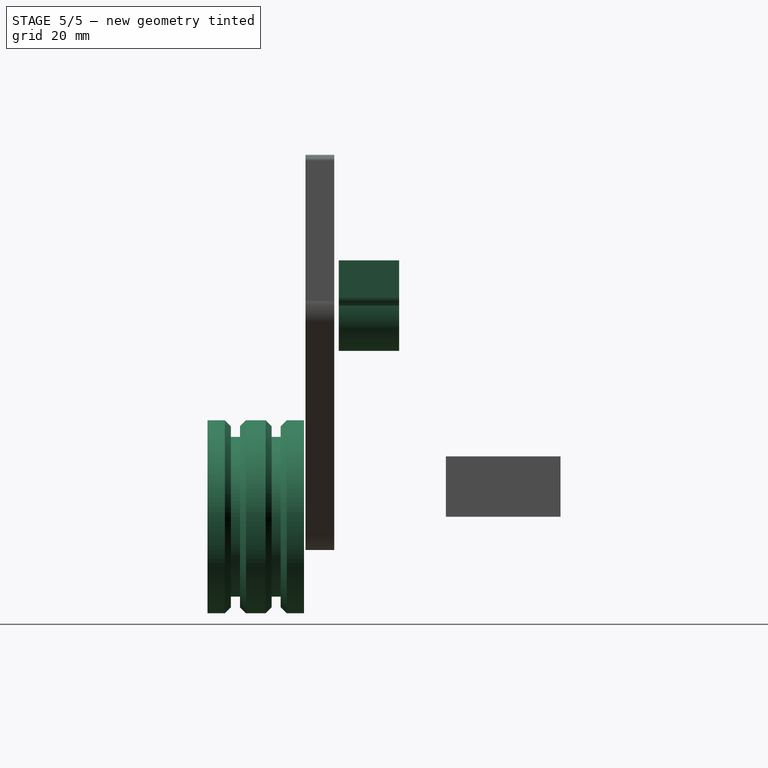
[diagram: stage 5 of 5 — right view after this stage's code; geometry added in this stage tinted green]
FEATURE [Part::Cylinder] Cylinder014
  Angle = 360
  AttacherType = Attacher::AttachEngine3D
  FirstAngle = 0
  Height = 9.5
  Placement = pos=(0,0,0) rot=(1,0,0;1.5708rad)
  Radius = 4.5
  SecondAngle = 0
  expr: Height = <<SuspensionBracket1>>.thick_eff
FEATURE [Part::Compound] Compound
  Links = -> [Cylinder015]
  Placement = pos=(0,0,0) rot=(0,1,0;0.523599rad)
  expr: .Placement.Rotation.Angle = <<SuspensionBracket1>>.idle_angle
FEATURE [PartDesign::Body] Body002  label="M8Press001"
  AllowCompound = false
  Group = -> [Sketch002,Pad002]
  Origin = -> Origin002
  Placement = pos=(40.4145,-2,70) rot=(1,0,0;1.5708rad)
  Tip = -> Pad002
  expr: .Placement.Base.x = <<SuspensionBracket1>>.horizontalspacing_wf
  expr: .Placement.Base.y = -(<<SuspensionBracket1>>.thick_eff - 7.5)
  expr: .Placement.Base.z = <<SuspensionBracket1>>.vertical_spacing
FEATURE [Part::MultiFuse] Fusion006
  Shapes = -> [Cylinder016,Body002,Compound,Cylinder014,Body001,Body]
FEATURE [Part::Cut] Cut005
  Base = -> Fusion007
  Tool = -> Fusion006
FEATURE [Part::Fillet] Fillet
  Base = -> Cut005
  EdgeLinks = -> Cut005 [Edge74,Edge93,Edge124]
  Edges = 3 edges r=2: [Edge74,Edge93,Edge124]
FEATURE [Part::Fillet] Fillet001
  Base = -> Fillet
  EdgeLinks = -> Fillet [Edge42]
  Edges = 1 edges r=2: [Edge42]
FEATURE [Part::Fillet] Fillet002
  Base = -> Fillet001
  EdgeLinks = -> Fillet001 [Edge9]
  Edges = 1 edges r=2: [Edge9]
FEATURE [Spreadsheet::Sheet] Spreadsheet001  label="SuspensionBracket1"
  cells = A2='Vertical Spacing; B2(vertical_spacing)=70; G2='Horizontal distance Wheel to Flange; H2(horizontalspacing_wf)==tan(idle_angle) * vertical_spacing; A3='Idle angle; B3(idle_angle)=30; G3='Effective thickness; H3(thick_eff)==max(7.5 + min_wall; thickness); A4='Minimum wall width; B4(min_wall)=2; G4='Occupied horizontal space; H4(occupied_horizontal)==vertical_spacing / cos(idle_angle); A5='Thickness; B5(thickness)=5; G5='Length of straight section 1; H5(straight1)==vertical_spacing / cos(idle_angle)
FEATURE [Spreadsheet::Sheet] Spreadsheet002  label="BearingFlangeParameters"
  cells = A2='Bearing configuration; A3='Bearing OD; B3(bearing_od)=22; A4='Bearing thickness; B4(bearing_h)=7; A5='Tolerance; B5(tolerance)=0.2; A6='Bearing ID; B6(bearing_id)=15; A7='Base Profile configuration; A8='Width; B8(profile_width)=20; A9='Screw through dia; B9(screw_hole_dia)=4.5; A10='Bearing offset; B10(bearing_offset)=15; C10='This is the offset of the axis center from the profile base; A11='Min wall width; B11(min_wall_width)=4; C11='Wall width except for bearing offset towards profile; A12='Screw head dia; B12(screw_head_dia)=8; C12='M4 has 7mm diameter, leaving space; A13='Screw head height; B13(screw_head_height)=8; C13='M4 has 4mm, leaving space (and with +3mm can use 12mm screws)
FEATURE [Part::MultiFuse] Fusion
  Shapes = -> [Fillet002,Fillet_solid,Fusion004_solid]
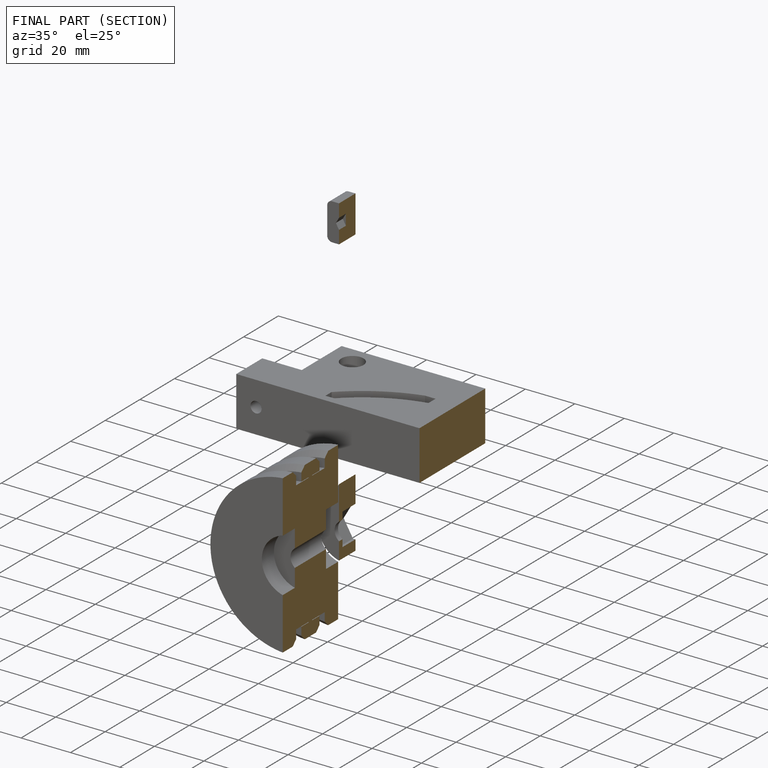
[diagram: finished part — half-section view (interior)]
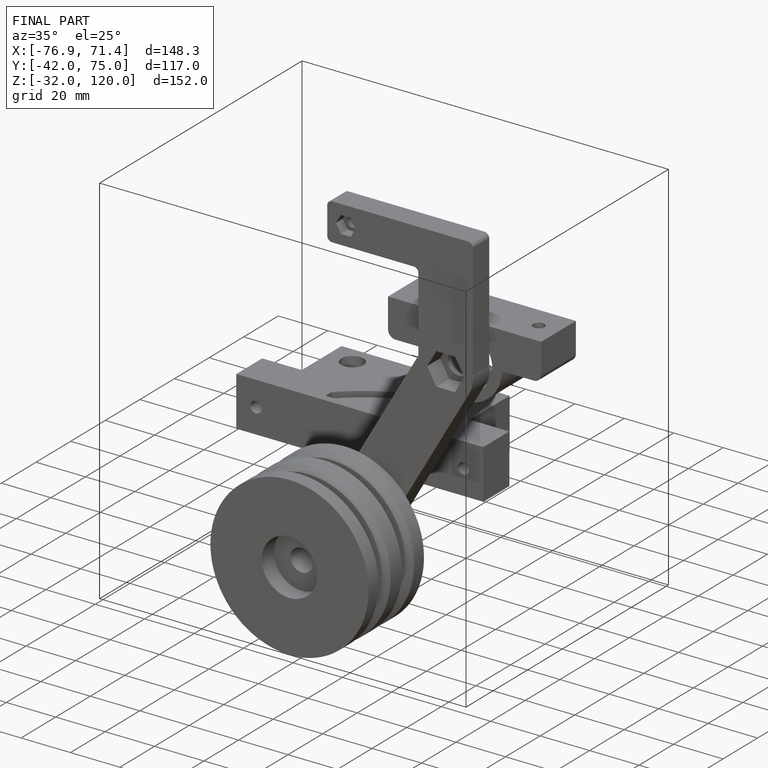
[diagram: finished part — iso view with bounding-box wireframe]
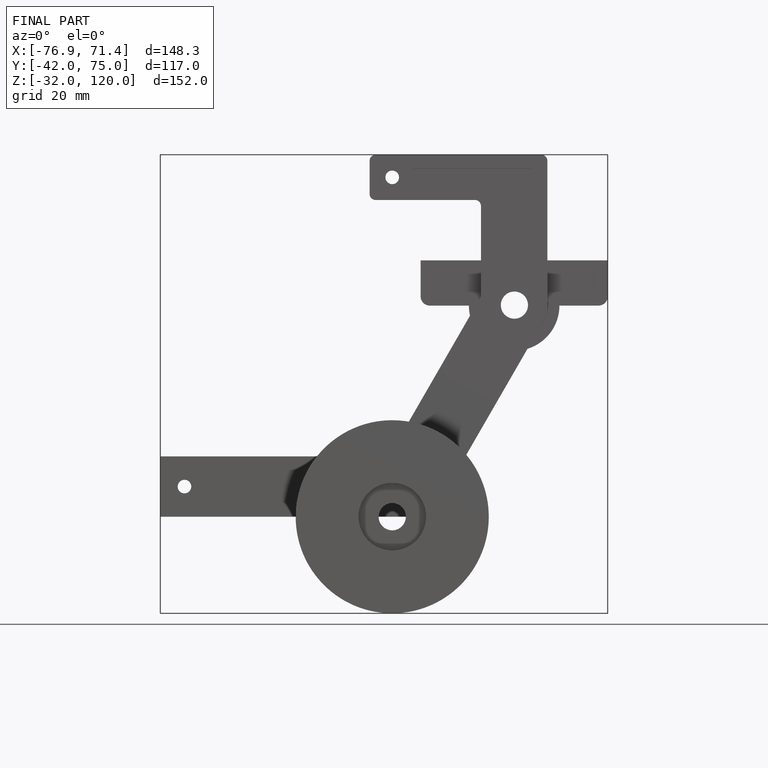
[diagram: finished part — front view with bounding-box wireframe]
